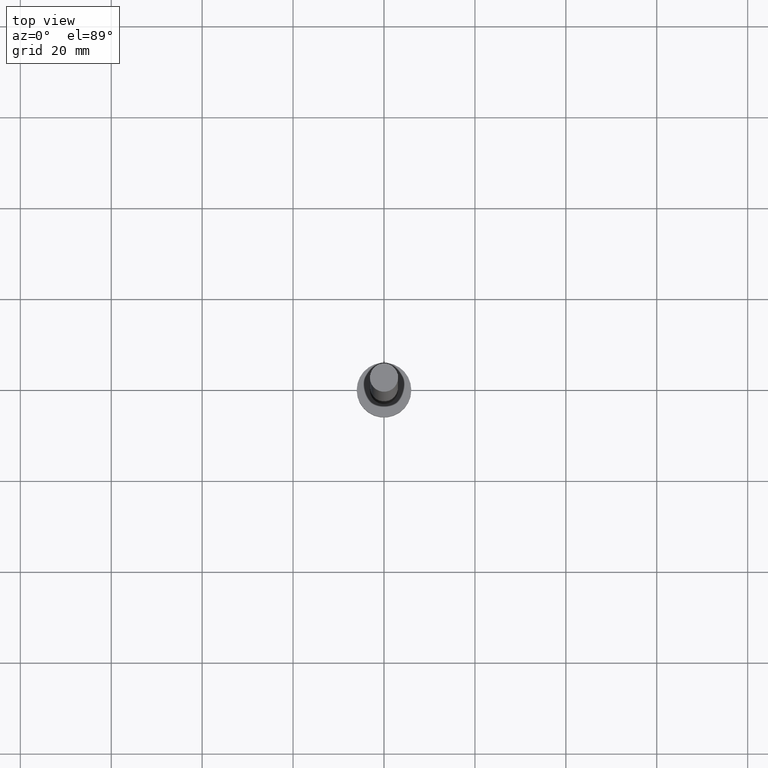
[diagram: clean part render]
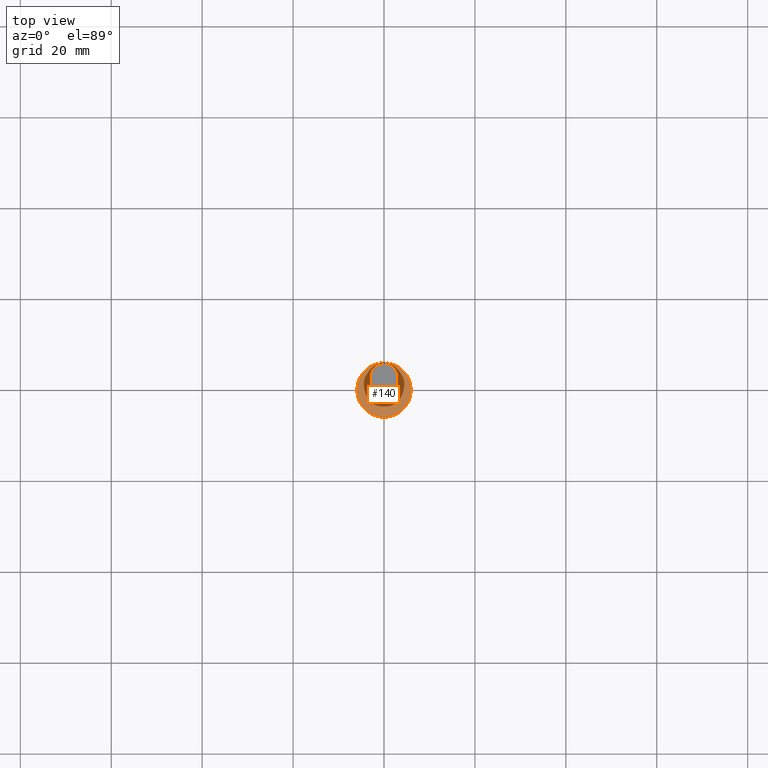
[diagram: same view with one face highlighted and labeled with its STEP entity id]
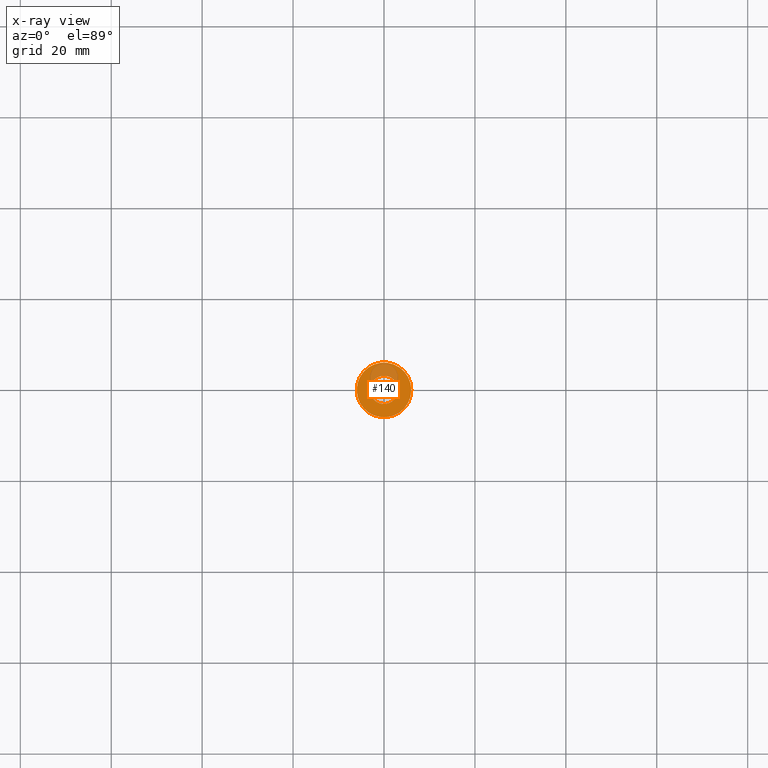
[diagram: x-ray of the same camera — body ghosted, the highlighted face saturated]
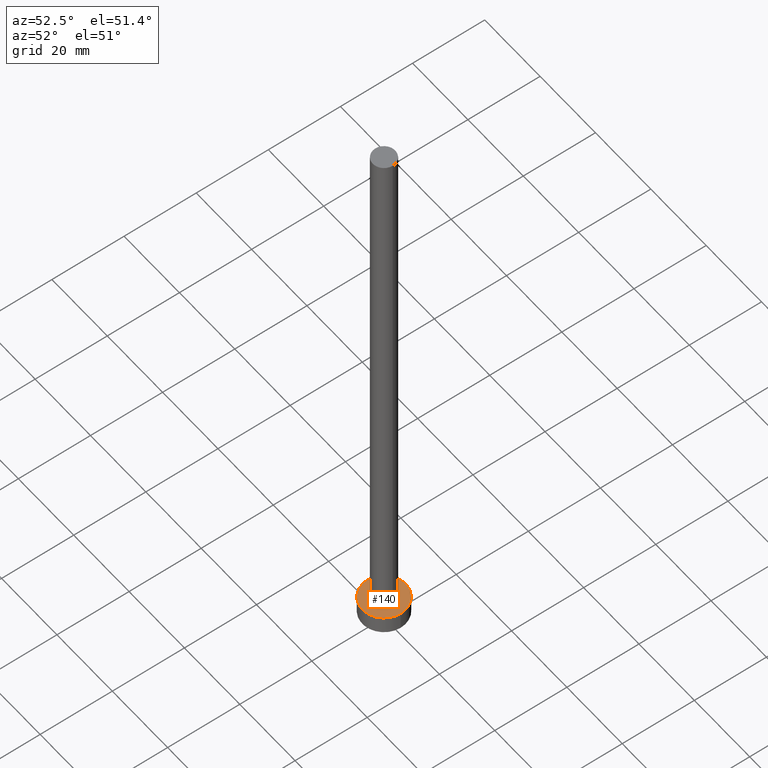
[diagram: same view with one face highlighted and labeled with its STEP entity id]
A machine part, top view. The second image highlights one B-rep face of the part: STEP entity #140.
The next image is the same camera in x-ray: the body ghosted, the highlighted face saturated — about 20% of this face is hidden behind the body in this view.
A second angle (auxiliary view) of the same face is appended — the face is thin or edge-on in the first view.
In plain terms, the highlighted planar face has unit normal (0, 0, 1).
Its self-contained STEP definition (entity closure, byte-faithful):
#11 = CARTESIAN_POINT ( 'NONE',  ( 6.000000000000000888, 7.347880794884120722E-16, 5.000000000000000000 ) ) ;
#12 = VERTEX_POINT ( 'NONE', #207 ) ;
#17 = CARTESIAN_POINT ( 'NONE',  ( 0.000000000000000000, 0.000000000000000000, 5.000000000000000000 ) ) ;
#19 = ORIENTED_EDGE ( 'NONE', *, *, #39, .T. ) ;
#30 = ORIENTED_EDGE ( 'NONE', *, *, #55, .T. ) ;
#33 = FACE_OUTER_BOUND ( 'NONE', #233, .T. ) ;
#39 = EDGE_CURVE ( 'NONE', #196, #176, #45, .T. ) ;
#45 = CIRCLE ( 'NONE', #183, 6.000000000000000888 ) ;
#48 = PLANE ( 'NONE',  #164 ) ;
#55 = EDGE_CURVE ( 'NONE', #176, #196, #64, .T. ) ;
#57 = ORIENTED_EDGE ( 'NONE', *, *, #135, .F. ) ;
#59 = CARTESIAN_POINT ( 'NONE',  ( 0.000000000000000000, 0.000000000000000000, 5.000000000000000000 ) ) ;
#63 = AXIS2_PLACEMENT_3D ( 'NONE', #17, #152, #191 ) ;
#64 = CIRCLE ( 'NONE', #238, 6.000000000000000888 ) ;
#85 = DIRECTION ( 'NONE',  ( 1.000000000000000000, 0.000000000000000000, 0.000000000000000000 ) ) ;
#87 = FACE_BOUND ( 'NONE', #179, .T. ) ;
#92 = CARTESIAN_POINT ( 'NONE',  ( -3.100000000000000089, 0.000000000000000000, 5.000000000000000000 ) ) ;
#93 = ORIENTED_EDGE ( 'NONE', *, *, #201, .F. ) ;
#99 = CIRCLE ( 'NONE', #130, 3.100000000000000089 ) ;
#106 = DIRECTION ( 'NONE',  ( 0.000000000000000000, 0.000000000000000000, 1.000000000000000000 ) ) ;
#126 = CARTESIAN_POINT ( 'NONE',  ( 0.000000000000000000, 0.000000000000000000, 5.000000000000000000 ) ) ;
#127 = DIRECTION ( 'NONE',  ( 1.000000000000000000, 0.000000000000000000, -0.000000000000000000 ) ) ;
#130 = AXIS2_PLACEMENT_3D ( 'NONE', #245, #172, #248 ) ;
#133 = VERTEX_POINT ( 'NONE', #92 ) ;
#135 = EDGE_CURVE ( 'NONE', #133, #12, #180, .T. ) ;
#138 = DIRECTION ( 'NONE',  ( 0.000000000000000000, 0.000000000000000000, 1.000000000000000000 ) ) ;
#140 = ADVANCED_FACE ( 'NONE', ( #87, #33 ), #48, .T. ) ;
#152 = DIRECTION ( 'NONE',  ( 0.000000000000000000, 0.000000000000000000, 1.000000000000000000 ) ) ;
#159 = DIRECTION ( 'NONE',  ( 1.000000000000000000, 0.000000000000000000, 0.000000000000000000 ) ) ;
#164 = AXIS2_PLACEMENT_3D ( 'NONE', #126, #226, #127 ) ;
#170 = CARTESIAN_POINT ( 'NONE',  ( -6.000000000000000888, 0.000000000000000000, 5.000000000000000000 ) ) ;
#172 = DIRECTION ( 'NONE',  ( 0.000000000000000000, 0.000000000000000000, 1.000000000000000000 ) ) ;
#176 = VERTEX_POINT ( 'NONE', #170 ) ;
#179 = EDGE_LOOP ( 'NONE', ( #57, #93 ) ) ;
#180 = CIRCLE ( 'NONE', #63, 3.100000000000000089 ) ;
#183 = AXIS2_PLACEMENT_3D ( 'NONE', #59, #138, #159 ) ;
#191 = DIRECTION ( 'NONE',  ( 1.000000000000000000, 0.000000000000000000, 0.000000000000000000 ) ) ;
#196 = VERTEX_POINT ( 'NONE', #11 ) ;
#201 = EDGE_CURVE ( 'NONE', #12, #133, #99, .T. ) ;
#207 = CARTESIAN_POINT ( 'NONE',  ( 3.100000000000000089, 3.796405077356794918E-16, 5.000000000000000000 ) ) ;
#226 = DIRECTION ( 'NONE',  ( 0.000000000000000000, 0.000000000000000000, 1.000000000000000000 ) ) ;
#233 = EDGE_LOOP ( 'NONE', ( #30, #19 ) ) ;
#238 = AXIS2_PLACEMENT_3D ( 'NONE', #243, #106, #85 ) ;
#243 = CARTESIAN_POINT ( 'NONE',  ( 0.000000000000000000, 0.000000000000000000, 5.000000000000000000 ) ) ;
#245 = CARTESIAN_POINT ( 'NONE',  ( 0.000000000000000000, 0.000000000000000000, 5.000000000000000000 ) ) ;
#248 = DIRECTION ( 'NONE',  ( 1.000000000000000000, 0.000000000000000000, 0.000000000000000000 ) ) ;